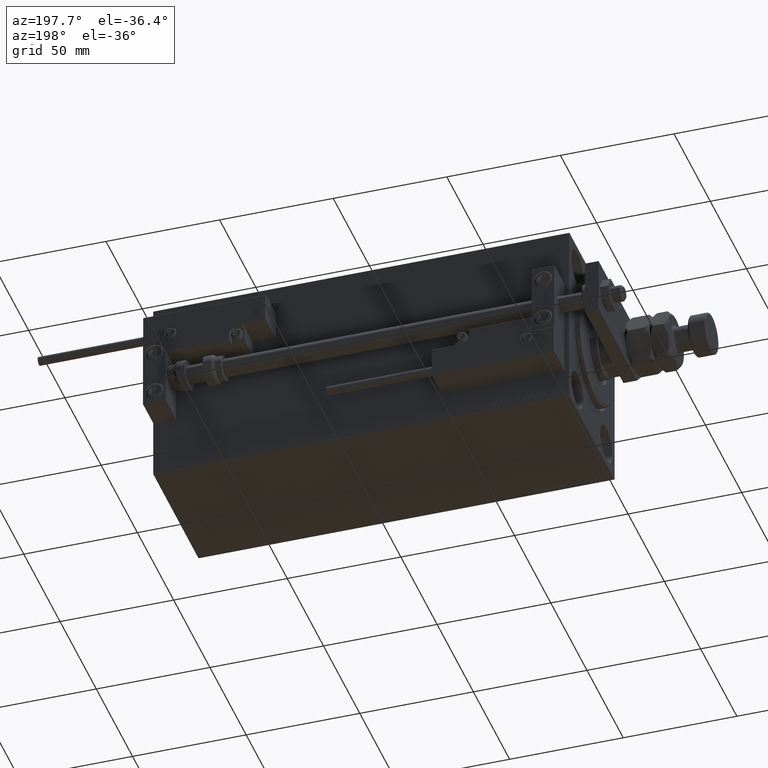
[diagram: clean part render]
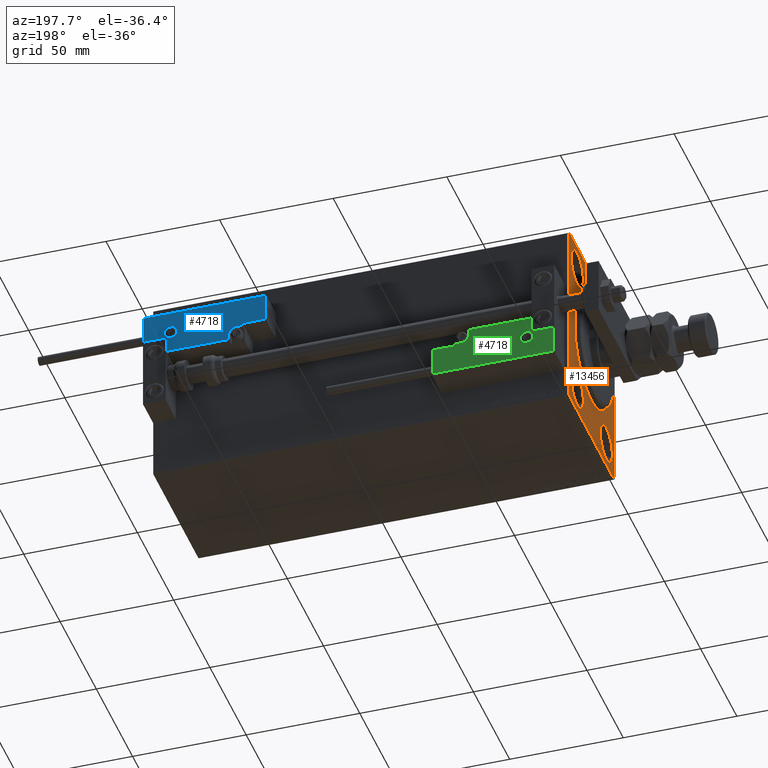
[diagram: same view with three faces highlighted in distinct colors, each labeled with its STEP entity id]
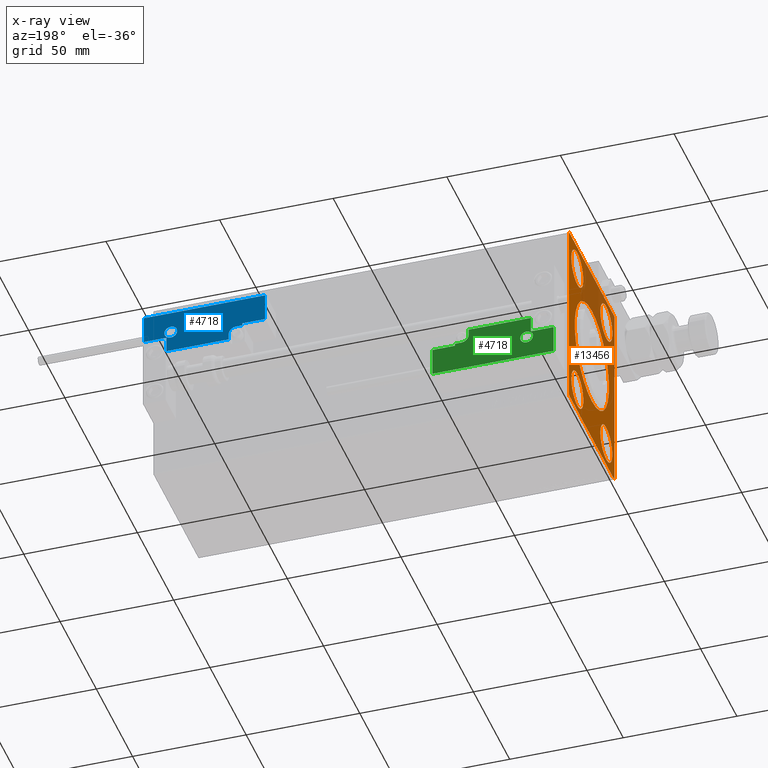
[diagram: x-ray of the same camera — body ghosted, the three highlighted faces saturated]
A machine part, auxiliary view with three faces highlighted in distinct colors.
The next image is the same camera in x-ray (body ghosted, the three faces saturated) — at least one of them is partly hidden behind the body in this view.
Their STEP definitions:

[orange] entity #13456 — the highlighted planar face has unit normal (1, 0, 0).
#165 = CIRCLE ( 'NONE', #16045, 8.250000000000000000 ) ;
#669 = AXIS2_PLACEMENT_3D ( 'NONE', #24267, #40219, #44910 ) ;
#701 = EDGE_CURVE ( 'NONE', #10112, #37192, #14300, .T. ) ;
#724 = ORIENTED_EDGE ( 'NONE', *, *, #47835, .F. ) ;
#1102 = CARTESIAN_POINT ( 'NONE',  ( 0.000000000000000000, 0.000000000000000000, 0.000000000000000000 ) ) ;
#1675 = DIRECTION ( 'NONE',  ( 1.000000000000000000, 0.000000000000000000, 0.000000000000000000 ) ) ;
#1942 = CARTESIAN_POINT ( 'NONE',  ( 0.000000000000000000, 20.00000000000000355, 31.50000000000000000 ) ) ;
#2326 = DIRECTION ( 'NONE',  ( 0.000000000000000000, -1.000000000000000000, -2.202823461557850341E-16 ) ) ;
#2525 = DIRECTION ( 'NONE',  ( -0.000000000000000000, 0.7071067811865474617, -0.7071067811865474617 ) ) ;
#2797 = VERTEX_POINT ( 'NONE', #26390 ) ;
#3162 = VERTEX_POINT ( 'NONE', #23190 ) ;
#3411 = DIRECTION ( 'NONE',  ( 0.000000000000000000, 0.000000000000000000, 1.000000000000000000 ) ) ;
#3761 = VERTEX_POINT ( 'NONE', #44576 ) ;
#4100 = ORIENTED_EDGE ( 'NONE', *, *, #21031, .T. ) ;
#4513 = CIRCLE ( 'NONE', #17868, 8.249999999999992895 ) ;
#4786 = ORIENTED_EDGE ( 'NONE', *, *, #25612, .F. ) ;
#5055 = ORIENTED_EDGE ( 'NONE', *, *, #36386, .F. ) ;
#5092 = DIRECTION ( 'NONE',  ( 0.000000000000000000, 0.000000000000000000, -1.000000000000000000 ) ) ;
#5330 = AXIS2_PLACEMENT_3D ( 'NONE', #16626, #8525, #23972 ) ;
#5370 = CARTESIAN_POINT ( 'NONE',  ( 0.000000000000000000, -19.99999999999999645, 39.74999999999999289 ) ) ;
#6428 = VERTEX_POINT ( 'NONE', #48444 ) ;
#6533 = CARTESIAN_POINT ( 'NONE',  ( 0.000000000000000000, -30.99999999999997158, 42.49999999999999289 ) ) ;
#6626 = ORIENTED_EDGE ( 'NONE', *, *, #47540, .F. ) ;
#6694 = VERTEX_POINT ( 'NONE', #6533 ) ;
#6743 = AXIS2_PLACEMENT_3D ( 'NONE', #41291, #8360, #16714 ) ;
#7336 = CARTESIAN_POINT ( 'NONE',  ( 0.000000000000000000, 31.50000000000001421, -42.00000000000000711 ) ) ;
#8045 = EDGE_CURVE ( 'NONE', #40168, #19398, #12369, .T. ) ;
#8253 = CIRCLE ( 'NONE', #20793, 8.250000000000000000 ) ;
#8360 = DIRECTION ( 'NONE',  ( -1.000000000000000000, 0.000000000000000000, 0.000000000000000000 ) ) ;
#8525 = DIRECTION ( 'NONE',  ( 1.000000000000000000, 0.000000000000000000, 0.000000000000000000 ) ) ;
#8776 = CARTESIAN_POINT ( 'NONE',  ( 0.000000000000000000, 31.50000000000001421, -42.50000000000000711 ) ) ;
#8847 = CARTESIAN_POINT ( 'NONE',  ( 0.000000000000000000, 31.00000000000001421, -42.50000000000000711 ) ) ;
#9172 = CIRCLE ( 'NONE', #38415, 8.250000000000000000 ) ;
#9363 = DIRECTION ( 'NONE',  ( 0.000000000000000000, 0.000000000000000000, 1.000000000000000000 ) ) ;
#10047 = ORIENTED_EDGE ( 'NONE', *, *, #36757, .F. ) ;
#10112 = VERTEX_POINT ( 'NONE', #28774 ) ;
#10620 = EDGE_CURVE ( 'NONE', #40083, #2797, #48795, .T. ) ;
#10984 = DIRECTION ( 'NONE',  ( -1.000000000000000000, 0.000000000000000000, 0.000000000000000000 ) ) ;
#12013 = VECTOR ( 'NONE', #32095, 1000.000000000000000 ) ;
#12369 = CIRCLE ( 'NONE', #669, 8.249999999999992895 ) ;
#12498 = EDGE_LOOP ( 'NONE', ( #10047, #6626 ) ) ;
#12642 = VECTOR ( 'NONE', #23297, 1000.000000000000114 ) ;
#12799 = AXIS2_PLACEMENT_3D ( 'NONE', #1102, #24667, #20237 ) ;
#12841 = CARTESIAN_POINT ( 'NONE',  ( 0.000000000000000000, 31.00000000000002842, 42.50000000000000711 ) ) ;
#13102 = DIRECTION ( 'NONE',  ( -0.000000000000000000, 0.7071067811865474617, 0.7071067811865474617 ) ) ;
#13165 = ORIENTED_EDGE ( 'NONE', *, *, #14437, .F. ) ;
#13360 = CARTESIAN_POINT ( 'NONE',  ( 0.000000000000000000, -31.50000000000000000, 41.99999999999996447 ) ) ;
#13456 = ADVANCED_FACE ( 'NONE', ( #40125, #44298, #40882, #48473, #33054, #16050 ), #48215, .F. ) ;
#13853 = DIRECTION ( 'NONE',  ( 0.000000000000000000, 0.000000000000000000, 1.000000000000000000 ) ) ;
#14300 = LINE ( 'NONE', #12841, #47318 ) ;
#14331 = AXIS2_PLACEMENT_3D ( 'NONE', #23304, #39266, #3411 ) ;
#14431 = EDGE_CURVE ( 'NONE', #2797, #40083, #27901, .T. ) ;
#14437 = EDGE_CURVE ( 'NONE', #15927, #37192, #24236, .T. ) ;
#14622 = EDGE_CURVE ( 'NONE', #3761, #21101, #4513, .T. ) ;
#14636 = CARTESIAN_POINT ( 'NONE',  ( 0.000000000000000000, 20.00000000000000355, 39.74999999999999289 ) ) ;
#14672 = DIRECTION ( 'NONE',  ( 0.000000000000000000, 1.000000000000000000, 0.000000000000000000 ) ) ;
#15317 = DIRECTION ( 'NONE',  ( -0.000000000000000000, -0.7071067811865474617, 0.7071067811865474617 ) ) ;
#15804 = CARTESIAN_POINT ( 'NONE',  ( 0.000000000000000000, -31.50000000000000000, 42.49999999999999289 ) ) ;
#15927 = VERTEX_POINT ( 'NONE', #48932 ) ;
#15943 = CIRCLE ( 'NONE', #6743, 8.249999999999992895 ) ;
#16045 = AXIS2_PLACEMENT_3D ( 'NONE', #20868, #36321, #17183 ) ;
#16050 = FACE_OUTER_BOUND ( 'NONE', #25828, .T. ) ;
#16626 = CARTESIAN_POINT ( 'NONE',  ( 0.000000000000000000, 0.000000000000000000, 0.000000000000000000 ) ) ;
#16714 = DIRECTION ( 'NONE',  ( 0.000000000000000000, 0.000000000000000000, 1.000000000000000000 ) ) ;
#16973 = ORIENTED_EDGE ( 'NONE', *, *, #701, .T. ) ;
#17183 = DIRECTION ( 'NONE',  ( 0.000000000000000000, 0.000000000000000000, 1.000000000000000000 ) ) ;
#17202 = CARTESIAN_POINT ( 'NONE',  ( 0.000000000000000000, -20.00000000000000355, -31.49999999999999289 ) ) ;
#17537 = VERTEX_POINT ( 'NONE', #33106 ) ;
#17868 = AXIS2_PLACEMENT_3D ( 'NONE', #1942, #17904, #29951 ) ;
#17904 = DIRECTION ( 'NONE',  ( -1.000000000000000000, 0.000000000000000000, 0.000000000000000000 ) ) ;
#18701 = AXIS2_PLACEMENT_3D ( 'NONE', #37536, #1675, #5092 ) ;
#18877 = ORIENTED_EDGE ( 'NONE', *, *, #26370, .F. ) ;
#19393 = DIRECTION ( 'NONE',  ( 0.000000000000000000, 0.000000000000000000, 1.000000000000000000 ) ) ;
#19398 = VERTEX_POINT ( 'NONE', #5370 ) ;
#19822 = VECTOR ( 'NONE', #31785, 1000.000000000000000 ) ;
#20237 = DIRECTION ( 'NONE',  ( 0.000000000000000000, 0.000000000000000000, -1.000000000000000000 ) ) ;
#20793 = AXIS2_PLACEMENT_3D ( 'NONE', #17202, #49378, #9363 ) ;
#20868 = CARTESIAN_POINT ( 'NONE',  ( 0.000000000000000000, 19.99999999999999645, -31.49999999999999289 ) ) ;
#20992 = CARTESIAN_POINT ( 'NONE',  ( 0.000000000000000000, 31.50000000000000000, 42.00000000000003553 ) ) ;
#21031 = EDGE_CURVE ( 'NONE', #6428, #6694, #36936, .T. ) ;
#21101 = VERTEX_POINT ( 'NONE', #14636 ) ;
#21708 = CARTESIAN_POINT ( 'NONE',  ( 0.000000000000000000, 31.50000000000000000, 42.50000000000000711 ) ) ;
#21714 = CIRCLE ( 'NONE', #28422, 8.250000000000000000 ) ;
#22266 = CARTESIAN_POINT ( 'NONE',  ( 0.000000000000000000, -31.50000000000000000, -42.50000000000000711 ) ) ;
#23190 = CARTESIAN_POINT ( 'NONE',  ( 0.000000000000000000, -31.00000000000000000, -42.50000000000000711 ) ) ;
#23297 = DIRECTION ( 'NONE',  ( 0.000000000000000000, -0.7071067811865474617, -0.7071067811865474617 ) ) ;
#23304 = CARTESIAN_POINT ( 'NONE',  ( 0.000000000000000000, 20.00000000000000355, 31.50000000000000000 ) ) ;
#23457 = CARTESIAN_POINT ( 'NONE',  ( 0.000000000000000000, -19.99999999999999645, 23.25000000000000355 ) ) ;
#23972 = DIRECTION ( 'NONE',  ( 0.000000000000000000, 0.000000000000000000, -1.000000000000000000 ) ) ;
#24236 = LINE ( 'NONE', #8776, #12013 ) ;
#24267 = CARTESIAN_POINT ( 'NONE',  ( 0.000000000000000000, -19.99999999999999645, 31.50000000000000000 ) ) ;
#24414 = CIRCLE ( 'NONE', #14331, 8.249999999999992895 ) ;
#24667 = DIRECTION ( 'NONE',  ( 1.000000000000000000, 0.000000000000000000, 0.000000000000000000 ) ) ;
#25612 = EDGE_CURVE ( 'NONE', #3162, #46688, #25949, .T. ) ;
#25828 = EDGE_LOOP ( 'NONE', ( #18877, #4100, #38332, #16973, #13165, #34164, #4786, #45542 ) ) ;
#25846 = VERTEX_POINT ( 'NONE', #40561 ) ;
#25949 = LINE ( 'NONE', #22266, #50717 ) ;
#26370 = EDGE_CURVE ( 'NONE', #6428, #25846, #47447, .T. ) ;
#26390 = CARTESIAN_POINT ( 'NONE',  ( 0.000000000000000000, 2.877919977996275587E-15, -23.49999999999996092 ) ) ;
#26546 = ORIENTED_EDGE ( 'NONE', *, *, #10620, .T. ) ;
#27901 = CIRCLE ( 'NONE', #5330, 23.49999999999996092 ) ;
#28324 = EDGE_LOOP ( 'NONE', ( #26546, #51653 ) ) ;
#28422 = AXIS2_PLACEMENT_3D ( 'NONE', #45536, #10984, #13853 ) ;
#28774 = CARTESIAN_POINT ( 'NONE',  ( 0.000000000000000000, 31.00000000000002842, 42.50000000000000711 ) ) ;
#29481 = EDGE_CURVE ( 'NONE', #10112, #6694, #33267, .T. ) ;
#29762 = EDGE_CURVE ( 'NONE', #35895, #17537, #8253, .T. ) ;
#29951 = DIRECTION ( 'NONE',  ( 0.000000000000000000, 0.000000000000000000, 1.000000000000000000 ) ) ;
#31125 = EDGE_LOOP ( 'NONE', ( #5055, #50563 ) ) ;
#31183 = DIRECTION ( 'NONE',  ( -1.000000000000000000, 0.000000000000000000, 0.000000000000000000 ) ) ;
#31679 = VECTOR ( 'NONE', #2326, 1000.000000000000000 ) ;
#31785 = DIRECTION ( 'NONE',  ( 0.000000000000000000, 0.000000000000000000, -1.000000000000000000 ) ) ;
#31826 = CARTESIAN_POINT ( 'NONE',  ( 0.000000000000000000, 19.99999999999999645, -23.24999999999999289 ) ) ;
#32095 = DIRECTION ( 'NONE',  ( 0.000000000000000000, -1.632680918566406300E-16, 1.000000000000000000 ) ) ;
#32400 = VERTEX_POINT ( 'NONE', #31826 ) ;
#33054 = FACE_BOUND ( 'NONE', #41799, .T. ) ;
#33106 = CARTESIAN_POINT ( 'NONE',  ( 0.000000000000000000, -20.00000000000000355, -23.24999999999999289 ) ) ;
#33267 = LINE ( 'NONE', #21708, #31679 ) ;
#33812 = CARTESIAN_POINT ( 'NONE',  ( 0.000000000000000000, -20.00000000000000355, -39.74999999999999289 ) ) ;
#34164 = ORIENTED_EDGE ( 'NONE', *, *, #35404, .T. ) ;
#35404 = EDGE_CURVE ( 'NONE', #15927, #46688, #43176, .T. ) ;
#35680 = VECTOR ( 'NONE', #13102, 1000.000000000000114 ) ;
#35823 = CARTESIAN_POINT ( 'NONE',  ( 0.000000000000000000, 19.99999999999999645, -39.74999999999999289 ) ) ;
#35895 = VERTEX_POINT ( 'NONE', #33812 ) ;
#36321 = DIRECTION ( 'NONE',  ( -1.000000000000000000, 0.000000000000000000, 0.000000000000000000 ) ) ;
#36386 = EDGE_CURVE ( 'NONE', #21101, #3761, #24414, .T. ) ;
#36537 = VERTEX_POINT ( 'NONE', #35823 ) ;
#36757 = EDGE_CURVE ( 'NONE', #32400, #36537, #165, .T. ) ;
#36936 = LINE ( 'NONE', #13360, #35680 ) ;
#37179 = ORIENTED_EDGE ( 'NONE', *, *, #8045, .F. ) ;
#37192 = VERTEX_POINT ( 'NONE', #20992 ) ;
#37536 = CARTESIAN_POINT ( 'NONE',  ( 0.000000000000000000, 0.000000000000000000, 0.000000000000000000 ) ) ;
#38332 = ORIENTED_EDGE ( 'NONE', *, *, #29481, .F. ) ;
#38415 = AXIS2_PLACEMENT_3D ( 'NONE', #47633, #31183, #19393 ) ;
#39266 = DIRECTION ( 'NONE',  ( -1.000000000000000000, 0.000000000000000000, 0.000000000000000000 ) ) ;
#40083 = VERTEX_POINT ( 'NONE', #48545 ) ;
#40125 = FACE_BOUND ( 'NONE', #28324, .T. ) ;
#40168 = VERTEX_POINT ( 'NONE', #23457 ) ;
#40219 = DIRECTION ( 'NONE',  ( -1.000000000000000000, 0.000000000000000000, 0.000000000000000000 ) ) ;
#40561 = CARTESIAN_POINT ( 'NONE',  ( 0.000000000000000000, -31.50000000000000000, -42.00000000000000711 ) ) ;
#40882 = FACE_BOUND ( 'NONE', #41773, .T. ) ;
#41291 = CARTESIAN_POINT ( 'NONE',  ( 0.000000000000000000, -19.99999999999999645, 31.50000000000000000 ) ) ;
#41730 = VECTOR ( 'NONE', #15317, 1000.000000000000114 ) ;
#41773 = EDGE_LOOP ( 'NONE', ( #724, #37179 ) ) ;
#41799 = EDGE_LOOP ( 'NONE', ( #49804, #48382 ) ) ;
#43176 = LINE ( 'NONE', #7336, #12642 ) ;
#44298 = FACE_BOUND ( 'NONE', #12498, .T. ) ;
#44576 = CARTESIAN_POINT ( 'NONE',  ( 0.000000000000000000, 20.00000000000000355, 23.25000000000000355 ) ) ;
#44910 = DIRECTION ( 'NONE',  ( 0.000000000000000000, 0.000000000000000000, 1.000000000000000000 ) ) ;
#45536 = CARTESIAN_POINT ( 'NONE',  ( 0.000000000000000000, 19.99999999999999645, -31.49999999999999289 ) ) ;
#45542 = ORIENTED_EDGE ( 'NONE', *, *, #48958, .T. ) ;
#46688 = VERTEX_POINT ( 'NONE', #8847 ) ;
#47318 = VECTOR ( 'NONE', #2525, 1000.000000000000114 ) ;
#47447 = LINE ( 'NONE', #15804, #19822 ) ;
#47540 = EDGE_CURVE ( 'NONE', #36537, #32400, #21714, .T. ) ;
#47633 = CARTESIAN_POINT ( 'NONE',  ( 0.000000000000000000, -20.00000000000000355, -31.49999999999999289 ) ) ;
#47835 = EDGE_CURVE ( 'NONE', #19398, #40168, #15943, .T. ) ;
#48215 = PLANE ( 'NONE',  #12799 ) ;
#48382 = ORIENTED_EDGE ( 'NONE', *, *, #29762, .F. ) ;
#48444 = CARTESIAN_POINT ( 'NONE',  ( 0.000000000000000000, -31.50000000000000000, 41.99999999999996447 ) ) ;
#48473 = FACE_BOUND ( 'NONE', #31125, .T. ) ;
#48545 = CARTESIAN_POINT ( 'NONE',  ( 0.000000000000000000, 0.000000000000000000, 23.49999999999996092 ) ) ;
#48795 = CIRCLE ( 'NONE', #18701, 23.49999999999996092 ) ;
#48932 = CARTESIAN_POINT ( 'NONE',  ( 0.000000000000000000, 31.50000000000001421, -42.00000000000000711 ) ) ;
#48958 = EDGE_CURVE ( 'NONE', #3162, #25846, #51417, .T. ) ;
#49378 = DIRECTION ( 'NONE',  ( -1.000000000000000000, 0.000000000000000000, 0.000000000000000000 ) ) ;
#49804 = ORIENTED_EDGE ( 'NONE', *, *, #50460, .F. ) ;
#50460 = EDGE_CURVE ( 'NONE', #17537, #35895, #9172, .T. ) ;
#50563 = ORIENTED_EDGE ( 'NONE', *, *, #14622, .F. ) ;
#50717 = VECTOR ( 'NONE', #14672, 1000.000000000000000 ) ;
#51157 = CARTESIAN_POINT ( 'NONE',  ( 0.000000000000000000, -31.00000000000000000, -42.50000000000000711 ) ) ;
#51417 = LINE ( 'NONE', #51157, #41730 ) ;
#51653 = ORIENTED_EDGE ( 'NONE', *, *, #14431, .T. ) ;

[blue] entity #4718 — the highlighted planar face has unit normal (0, 1, -0).
#207 = CARTESIAN_POINT ( 'NONE',  ( -26.69999999999994600, 7.300000000000005151, 14.00000000000000000 ) ) ;
#536 = VERTEX_POINT ( 'NONE', #18622 ) ;
#2732 = DIRECTION ( 'NONE',  ( 1.000000000000000000, -0.000000000000000000, 0.000000000000000000 ) ) ;
#2864 = VERTEX_POINT ( 'NONE', #3094 ) ;
#3094 = CARTESIAN_POINT ( 'NONE',  ( -11.99999999999994849, 9.800000000000004263, 14.00000000000000000 ) ) ;
#3975 = CIRCLE ( 'NONE', #22379, 2.800000000000000266 ) ;
#4718 = ADVANCED_FACE ( 'NONE', ( #13106, #29338 ), #48695, .T. ) ;
#4881 = VECTOR ( 'NONE', #39345, 1000.000000000000000 ) ;
#5752 = VECTOR ( 'NONE', #23729, 1000.000000000000000 ) ;
#5767 = DIRECTION ( 'NONE',  ( 1.000000000000000000, 0.000000000000000000, 0.000000000000000000 ) ) ;
#5903 = LINE ( 'NONE', #30241, #19065 ) ;
#5929 = DIRECTION ( 'NONE',  ( 0.000000000000000000, -0.000000000000000000, -1.000000000000000000 ) ) ;
#6405 = CARTESIAN_POINT ( 'NONE',  ( 11.00000000000000000, 0.3000000000000032085, 14.00000000000000000 ) ) ;
#6834 = VERTEX_POINT ( 'NONE', #17215 ) ;
#6891 = EDGE_CURVE ( 'NONE', #36644, #37305, #13291, .T. ) ;
#7124 = CARTESIAN_POINT ( 'NONE',  ( 26.70000000000006324, 7.300000000000007816, 14.00000000000000000 ) ) ;
#8086 = ORIENTED_EDGE ( 'NONE', *, *, #43144, .T. ) ;
#9120 = DIRECTION ( 'NONE',  ( 1.000000000000000000, -1.734723475976815230E-16, 0.000000000000000000 ) ) ;
#9874 = VERTEX_POINT ( 'NONE', #14138 ) ;
#10962 = ORIENTED_EDGE ( 'NONE', *, *, #26625, .T. ) ;
#11373 = VECTOR ( 'NONE', #23461, 1000.000000000000000 ) ;
#12888 = EDGE_LOOP ( 'NONE', ( #8086, #29815, #26126, #13828, #21159, #50703, #31902, #13519, #16238, #15145, #14265 ) ) ;
#12909 = CIRCLE ( 'NONE', #39627, 3.299999999999997158 ) ;
#13106 = FACE_BOUND ( 'NONE', #16447, .T. ) ;
#13291 = LINE ( 'NONE', #29269, #16518 ) ;
#13519 = ORIENTED_EDGE ( 'NONE', *, *, #23198, .T. ) ;
#13828 = ORIENTED_EDGE ( 'NONE', *, *, #15527, .T. ) ;
#14138 = CARTESIAN_POINT ( 'NONE',  ( -16.69999999999999218, 0.3000000000000032085, 14.00000000000000000 ) ) ;
#14265 = ORIENTED_EDGE ( 'NONE', *, *, #6891, .T. ) ;
#15145 = ORIENTED_EDGE ( 'NONE', *, *, #24855, .T. ) ;
#15523 = CARTESIAN_POINT ( 'NONE',  ( -16.69999999999999218, 3.252606517456513302E-15, 14.00000000000000000 ) ) ;
#15527 = EDGE_CURVE ( 'NONE', #32618, #536, #12909, .T. ) ;
#16238 = ORIENTED_EDGE ( 'NONE', *, *, #42462, .T. ) ;
#16447 = EDGE_LOOP ( 'NONE', ( #10962, #23146 ) ) ;
#16518 = VECTOR ( 'NONE', #9120, 1000.000000000000000 ) ;
#16591 = CARTESIAN_POINT ( 'NONE',  ( -26.99999999999993605, 19.70000000000002061, 14.00000000000000000 ) ) ;
#17158 = AXIS2_PLACEMENT_3D ( 'NONE', #38425, #42078, #49664 ) ;
#17215 = CARTESIAN_POINT ( 'NONE',  ( -26.69999999999993534, 19.70000000000002061, 14.00000000000000000 ) ) ;
#18276 = EDGE_CURVE ( 'NONE', #37917, #2864, #39775, .T. ) ;
#18448 = LINE ( 'NONE', #31286, #33208 ) ;
#18622 = CARTESIAN_POINT ( 'NONE',  ( 13.99999999999999822, 6.300000000000001599, 14.00000000000000000 ) ) ;
#18903 = AXIS2_PLACEMENT_3D ( 'NONE', #25156, #41612, #5767 ) ;
#19065 = VECTOR ( 'NONE', #34187, 1000.000000000000000 ) ;
#19203 = EDGE_CURVE ( 'NONE', #40181, #33786, #35773, .T. ) ;
#19459 = LINE ( 'NONE', #15523, #4881 ) ;
#19949 = LINE ( 'NONE', #43747, #31569 ) ;
#21159 = ORIENTED_EDGE ( 'NONE', *, *, #25632, .T. ) ;
#21414 = EDGE_CURVE ( 'NONE', #38947, #32618, #18448, .T. ) ;
#21418 = EDGE_CURVE ( 'NONE', #9874, #38947, #38075, .T. ) ;
#21771 = DIRECTION ( 'NONE',  ( 1.000000000000000000, 0.000000000000000000, 0.000000000000000000 ) ) ;
#22379 = AXIS2_PLACEMENT_3D ( 'NONE', #41657, #50008, #21771 ) ;
#23146 = ORIENTED_EDGE ( 'NONE', *, *, #18276, .T. ) ;
#23198 = EDGE_CURVE ( 'NONE', #51631, #40488, #19949, .T. ) ;
#23461 = DIRECTION ( 'NONE',  ( 9.912705577010318647E-16, 1.000000000000000000, 0.000000000000000000 ) ) ;
#23630 = CARTESIAN_POINT ( 'NONE',  ( 10.69999999999999929, 3.000000000000003109, 14.00000000000000000 ) ) ;
#23663 = CARTESIAN_POINT ( 'NONE',  ( 13.99999999999999822, 3.000000000000002665, 14.00000000000000000 ) ) ;
#23729 = DIRECTION ( 'NONE',  ( 1.000000000000000000, -1.734723475976796001E-16, 0.000000000000000000 ) ) ;
#23977 = CARTESIAN_POINT ( 'NONE',  ( 16.69999999999999929, 6.300000000000003375, 14.00000000000000000 ) ) ;
#24249 = CARTESIAN_POINT ( 'NONE',  ( 27.00000000000006395, 7.300000000000007816, 14.00000000000000000 ) ) ;
#24855 = EDGE_CURVE ( 'NONE', #6834, #36644, #5903, .T. ) ;
#25156 = CARTESIAN_POINT ( 'NONE',  ( 0.000000000000000000, 0.000000000000000000, 14.00000000000000000 ) ) ;
#25632 = EDGE_CURVE ( 'NONE', #536, #40181, #50781, .T. ) ;
#26126 = ORIENTED_EDGE ( 'NONE', *, *, #21414, .T. ) ;
#26577 = VECTOR ( 'NONE', #32576, 1000.000000000000000 ) ;
#26625 = EDGE_CURVE ( 'NONE', #2864, #37917, #3975, .T. ) ;
#26984 = DIRECTION ( 'NONE',  ( 1.000000000000000000, 5.782411586589357639E-16, -0.000000000000000000 ) ) ;
#27605 = LINE ( 'NONE', #16591, #26577 ) ;
#27899 = CARTESIAN_POINT ( 'NONE',  ( 10.69999999999999929, 0.3000000000000032085, 14.00000000000000000 ) ) ;
#29143 = LINE ( 'NONE', #24249, #5752 ) ;
#29269 = CARTESIAN_POINT ( 'NONE',  ( -16.99999999999999289, 7.300000000000003375, 14.00000000000000000 ) ) ;
#29338 = FACE_OUTER_BOUND ( 'NONE', #12888, .T. ) ;
#29815 = ORIENTED_EDGE ( 'NONE', *, *, #21418, .T. ) ;
#29945 = EDGE_CURVE ( 'NONE', #33786, #51631, #29143, .T. ) ;
#30241 = CARTESIAN_POINT ( 'NONE',  ( -26.69999999999994600, 7.000000000000005329, 14.00000000000000000 ) ) ;
#31286 = CARTESIAN_POINT ( 'NONE',  ( 10.69999999999999929, 3.000000000000003109, 14.00000000000000000 ) ) ;
#31569 = VECTOR ( 'NONE', #31994, 1000.000000000000000 ) ;
#31902 = ORIENTED_EDGE ( 'NONE', *, *, #29945, .T. ) ;
#31994 = DIRECTION ( 'NONE',  ( 0.000000000000000000, 1.000000000000000000, -0.000000000000000000 ) ) ;
#32576 = DIRECTION ( 'NONE',  ( -1.000000000000000000, 6.424901762877063495E-17, -0.000000000000000000 ) ) ;
#32618 = VERTEX_POINT ( 'NONE', #23630 ) ;
#33208 = VECTOR ( 'NONE', #50887, 1000.000000000000000 ) ;
#33786 = VERTEX_POINT ( 'NONE', #35346 ) ;
#34187 = DIRECTION ( 'NONE',  ( -8.006416042969869188E-16, -1.000000000000000000, 0.000000000000000000 ) ) ;
#34412 = CARTESIAN_POINT ( 'NONE',  ( 26.70000000000006324, 19.70000000000001705, 14.00000000000000000 ) ) ;
#35346 = CARTESIAN_POINT ( 'NONE',  ( 16.69999999999999929, 7.300000000000009592, 14.00000000000000000 ) ) ;
#35717 = VECTOR ( 'NONE', #26984, 1000.000000000000000 ) ;
#35773 = LINE ( 'NONE', #40197, #11373 ) ;
#36018 = CARTESIAN_POINT ( 'NONE',  ( -17.59999999999994813, 9.800000000000004263, 14.00000000000000000 ) ) ;
#36644 = VERTEX_POINT ( 'NONE', #207 ) ;
#37305 = VERTEX_POINT ( 'NONE', #39787 ) ;
#37917 = VERTEX_POINT ( 'NONE', #36018 ) ;
#38075 = LINE ( 'NONE', #6405, #42356 ) ;
#38425 = CARTESIAN_POINT ( 'NONE',  ( -14.79999999999994920, 9.800000000000004263, 14.00000000000000000 ) ) ;
#38947 = VERTEX_POINT ( 'NONE', #27899 ) ;
#39345 = DIRECTION ( 'NONE',  ( 0.000000000000000000, -1.000000000000000000, 0.000000000000000000 ) ) ;
#39627 = AXIS2_PLACEMENT_3D ( 'NONE', #23663, #5929, #43546 ) ;
#39775 = CIRCLE ( 'NONE', #17158, 2.800000000000000266 ) ;
#39787 = CARTESIAN_POINT ( 'NONE',  ( -16.69999999999999218, 7.300000000000003375, 14.00000000000000000 ) ) ;
#40181 = VERTEX_POINT ( 'NONE', #23977 ) ;
#40197 = CARTESIAN_POINT ( 'NONE',  ( 16.69999999999999929, 7.000000000000009770, 14.00000000000000000 ) ) ;
#40488 = VERTEX_POINT ( 'NONE', #34412 ) ;
#41612 = DIRECTION ( 'NONE',  ( -0.000000000000000000, 0.000000000000000000, 1.000000000000000000 ) ) ;
#41657 = CARTESIAN_POINT ( 'NONE',  ( -14.79999999999994920, 9.800000000000004263, 14.00000000000000000 ) ) ;
#42078 = DIRECTION ( 'NONE',  ( 0.000000000000000000, -0.000000000000000000, -1.000000000000000000 ) ) ;
#42356 = VECTOR ( 'NONE', #2732, 1000.000000000000000 ) ;
#42462 = EDGE_CURVE ( 'NONE', #40488, #6834, #27605, .T. ) ;
#43144 = EDGE_CURVE ( 'NONE', #37305, #9874, #19459, .T. ) ;
#43196 = CARTESIAN_POINT ( 'NONE',  ( 17.00000000000000000, 6.300000000000003375, 14.00000000000000000 ) ) ;
#43546 = DIRECTION ( 'NONE',  ( 1.000000000000000000, 0.000000000000000000, 0.000000000000000000 ) ) ;
#43747 = CARTESIAN_POINT ( 'NONE',  ( 26.70000000000006324, 20.00000000000001776, 14.00000000000000000 ) ) ;
#48695 = PLANE ( 'NONE',  #18903 ) ;
#49664 = DIRECTION ( 'NONE',  ( 1.000000000000000000, 0.000000000000000000, 0.000000000000000000 ) ) ;
#50008 = DIRECTION ( 'NONE',  ( 0.000000000000000000, -0.000000000000000000, -1.000000000000000000 ) ) ;
#50703 = ORIENTED_EDGE ( 'NONE', *, *, #19203, .T. ) ;
#50781 = LINE ( 'NONE', #43196, #35717 ) ;
#50887 = DIRECTION ( 'NONE',  ( -0.000000000000000000, 1.000000000000000000, -0.000000000000000000 ) ) ;
#51631 = VERTEX_POINT ( 'NONE', #7124 ) ;

[green] entity #4718 — the highlighted planar face has unit normal (-0, 1, -0).
#207 = CARTESIAN_POINT ( 'NONE',  ( -26.69999999999994600, 7.300000000000005151, 14.00000000000000000 ) ) ;
#536 = VERTEX_POINT ( 'NONE', #18622 ) ;
#2732 = DIRECTION ( 'NONE',  ( 1.000000000000000000, -0.000000000000000000, 0.000000000000000000 ) ) ;
#2864 = VERTEX_POINT ( 'NONE', #3094 ) ;
#3094 = CARTESIAN_POINT ( 'NONE',  ( -11.99999999999994849, 9.800000000000004263, 14.00000000000000000 ) ) ;
#3975 = CIRCLE ( 'NONE', #22379, 2.800000000000000266 ) ;
#4718 = ADVANCED_FACE ( 'NONE', ( #13106, #29338 ), #48695, .T. ) ;
#4881 = VECTOR ( 'NONE', #39345, 1000.000000000000000 ) ;
#5752 = VECTOR ( 'NONE', #23729, 1000.000000000000000 ) ;
#5767 = DIRECTION ( 'NONE',  ( 1.000000000000000000, 0.000000000000000000, 0.000000000000000000 ) ) ;
#5903 = LINE ( 'NONE', #30241, #19065 ) ;
#5929 = DIRECTION ( 'NONE',  ( 0.000000000000000000, -0.000000000000000000, -1.000000000000000000 ) ) ;
#6405 = CARTESIAN_POINT ( 'NONE',  ( 11.00000000000000000, 0.3000000000000032085, 14.00000000000000000 ) ) ;
#6834 = VERTEX_POINT ( 'NONE', #17215 ) ;
#6891 = EDGE_CURVE ( 'NONE', #36644, #37305, #13291, .T. ) ;
#7124 = CARTESIAN_POINT ( 'NONE',  ( 26.70000000000006324, 7.300000000000007816, 14.00000000000000000 ) ) ;
#8086 = ORIENTED_EDGE ( 'NONE', *, *, #43144, .T. ) ;
#9120 = DIRECTION ( 'NONE',  ( 1.000000000000000000, -1.734723475976815230E-16, 0.000000000000000000 ) ) ;
#9874 = VERTEX_POINT ( 'NONE', #14138 ) ;
#10962 = ORIENTED_EDGE ( 'NONE', *, *, #26625, .T. ) ;
#11373 = VECTOR ( 'NONE', #23461, 1000.000000000000000 ) ;
#12888 = EDGE_LOOP ( 'NONE', ( #8086, #29815, #26126, #13828, #21159, #50703, #31902, #13519, #16238, #15145, #14265 ) ) ;
#12909 = CIRCLE ( 'NONE', #39627, 3.299999999999997158 ) ;
#13106 = FACE_BOUND ( 'NONE', #16447, .T. ) ;
#13291 = LINE ( 'NONE', #29269, #16518 ) ;
#13519 = ORIENTED_EDGE ( 'NONE', *, *, #23198, .T. ) ;
#13828 = ORIENTED_EDGE ( 'NONE', *, *, #15527, .T. ) ;
#14138 = CARTESIAN_POINT ( 'NONE',  ( -16.69999999999999218, 0.3000000000000032085, 14.00000000000000000 ) ) ;
#14265 = ORIENTED_EDGE ( 'NONE', *, *, #6891, .T. ) ;
#15145 = ORIENTED_EDGE ( 'NONE', *, *, #24855, .T. ) ;
#15523 = CARTESIAN_POINT ( 'NONE',  ( -16.69999999999999218, 3.252606517456513302E-15, 14.00000000000000000 ) ) ;
#15527 = EDGE_CURVE ( 'NONE', #32618, #536, #12909, .T. ) ;
#16238 = ORIENTED_EDGE ( 'NONE', *, *, #42462, .T. ) ;
#16447 = EDGE_LOOP ( 'NONE', ( #10962, #23146 ) ) ;
#16518 = VECTOR ( 'NONE', #9120, 1000.000000000000000 ) ;
#16591 = CARTESIAN_POINT ( 'NONE',  ( -26.99999999999993605, 19.70000000000002061, 14.00000000000000000 ) ) ;
#17158 = AXIS2_PLACEMENT_3D ( 'NONE', #38425, #42078, #49664 ) ;
#17215 = CARTESIAN_POINT ( 'NONE',  ( -26.69999999999993534, 19.70000000000002061, 14.00000000000000000 ) ) ;
#18276 = EDGE_CURVE ( 'NONE', #37917, #2864, #39775, .T. ) ;
#18448 = LINE ( 'NONE', #31286, #33208 ) ;
#18622 = CARTESIAN_POINT ( 'NONE',  ( 13.99999999999999822, 6.300000000000001599, 14.00000000000000000 ) ) ;
#18903 = AXIS2_PLACEMENT_3D ( 'NONE', #25156, #41612, #5767 ) ;
#19065 = VECTOR ( 'NONE', #34187, 1000.000000000000000 ) ;
#19203 = EDGE_CURVE ( 'NONE', #40181, #33786, #35773, .T. ) ;
#19459 = LINE ( 'NONE', #15523, #4881 ) ;
#19949 = LINE ( 'NONE', #43747, #31569 ) ;
#21159 = ORIENTED_EDGE ( 'NONE', *, *, #25632, .T. ) ;
#21414 = EDGE_CURVE ( 'NONE', #38947, #32618, #18448, .T. ) ;
#21418 = EDGE_CURVE ( 'NONE', #9874, #38947, #38075, .T. ) ;
#21771 = DIRECTION ( 'NONE',  ( 1.000000000000000000, 0.000000000000000000, 0.000000000000000000 ) ) ;
#22379 = AXIS2_PLACEMENT_3D ( 'NONE', #41657, #50008, #21771 ) ;
#23146 = ORIENTED_EDGE ( 'NONE', *, *, #18276, .T. ) ;
#23198 = EDGE_CURVE ( 'NONE', #51631, #40488, #19949, .T. ) ;
#23461 = DIRECTION ( 'NONE',  ( 9.912705577010318647E-16, 1.000000000000000000, 0.000000000000000000 ) ) ;
#23630 = CARTESIAN_POINT ( 'NONE',  ( 10.69999999999999929, 3.000000000000003109, 14.00000000000000000 ) ) ;
#23663 = CARTESIAN_POINT ( 'NONE',  ( 13.99999999999999822, 3.000000000000002665, 14.00000000000000000 ) ) ;
#23729 = DIRECTION ( 'NONE',  ( 1.000000000000000000, -1.734723475976796001E-16, 0.000000000000000000 ) ) ;
#23977 = CARTESIAN_POINT ( 'NONE',  ( 16.69999999999999929, 6.300000000000003375, 14.00000000000000000 ) ) ;
#24249 = CARTESIAN_POINT ( 'NONE',  ( 27.00000000000006395, 7.300000000000007816, 14.00000000000000000 ) ) ;
#24855 = EDGE_CURVE ( 'NONE', #6834, #36644, #5903, .T. ) ;
#25156 = CARTESIAN_POINT ( 'NONE',  ( 0.000000000000000000, 0.000000000000000000, 14.00000000000000000 ) ) ;
#25632 = EDGE_CURVE ( 'NONE', #536, #40181, #50781, .T. ) ;
#26126 = ORIENTED_EDGE ( 'NONE', *, *, #21414, .T. ) ;
#26577 = VECTOR ( 'NONE', #32576, 1000.000000000000000 ) ;
#26625 = EDGE_CURVE ( 'NONE', #2864, #37917, #3975, .T. ) ;
#26984 = DIRECTION ( 'NONE',  ( 1.000000000000000000, 5.782411586589357639E-16, -0.000000000000000000 ) ) ;
#27605 = LINE ( 'NONE', #16591, #26577 ) ;
#27899 = CARTESIAN_POINT ( 'NONE',  ( 10.69999999999999929, 0.3000000000000032085, 14.00000000000000000 ) ) ;
#29143 = LINE ( 'NONE', #24249, #5752 ) ;
#29269 = CARTESIAN_POINT ( 'NONE',  ( -16.99999999999999289, 7.300000000000003375, 14.00000000000000000 ) ) ;
#29338 = FACE_OUTER_BOUND ( 'NONE', #12888, .T. ) ;
#29815 = ORIENTED_EDGE ( 'NONE', *, *, #21418, .T. ) ;
#29945 = EDGE_CURVE ( 'NONE', #33786, #51631, #29143, .T. ) ;
#30241 = CARTESIAN_POINT ( 'NONE',  ( -26.69999999999994600, 7.000000000000005329, 14.00000000000000000 ) ) ;
#31286 = CARTESIAN_POINT ( 'NONE',  ( 10.69999999999999929, 3.000000000000003109, 14.00000000000000000 ) ) ;
#31569 = VECTOR ( 'NONE', #31994, 1000.000000000000000 ) ;
#31902 = ORIENTED_EDGE ( 'NONE', *, *, #29945, .T. ) ;
#31994 = DIRECTION ( 'NONE',  ( 0.000000000000000000, 1.000000000000000000, -0.000000000000000000 ) ) ;
#32576 = DIRECTION ( 'NONE',  ( -1.000000000000000000, 6.424901762877063495E-17, -0.000000000000000000 ) ) ;
#32618 = VERTEX_POINT ( 'NONE', #23630 ) ;
#33208 = VECTOR ( 'NONE', #50887, 1000.000000000000000 ) ;
#33786 = VERTEX_POINT ( 'NONE', #35346 ) ;
#34187 = DIRECTION ( 'NONE',  ( -8.006416042969869188E-16, -1.000000000000000000, 0.000000000000000000 ) ) ;
#34412 = CARTESIAN_POINT ( 'NONE',  ( 26.70000000000006324, 19.70000000000001705, 14.00000000000000000 ) ) ;
#35346 = CARTESIAN_POINT ( 'NONE',  ( 16.69999999999999929, 7.300000000000009592, 14.00000000000000000 ) ) ;
#35717 = VECTOR ( 'NONE', #26984, 1000.000000000000000 ) ;
#35773 = LINE ( 'NONE', #40197, #11373 ) ;
#36018 = CARTESIAN_POINT ( 'NONE',  ( -17.59999999999994813, 9.800000000000004263, 14.00000000000000000 ) ) ;
#36644 = VERTEX_POINT ( 'NONE', #207 ) ;
#37305 = VERTEX_POINT ( 'NONE', #39787 ) ;
#37917 = VERTEX_POINT ( 'NONE', #36018 ) ;
#38075 = LINE ( 'NONE', #6405, #42356 ) ;
#38425 = CARTESIAN_POINT ( 'NONE',  ( -14.79999999999994920, 9.800000000000004263, 14.00000000000000000 ) ) ;
#38947 = VERTEX_POINT ( 'NONE', #27899 ) ;
#39345 = DIRECTION ( 'NONE',  ( 0.000000000000000000, -1.000000000000000000, 0.000000000000000000 ) ) ;
#39627 = AXIS2_PLACEMENT_3D ( 'NONE', #23663, #5929, #43546 ) ;
#39775 = CIRCLE ( 'NONE', #17158, 2.800000000000000266 ) ;
#39787 = CARTESIAN_POINT ( 'NONE',  ( -16.69999999999999218, 7.300000000000003375, 14.00000000000000000 ) ) ;
#40181 = VERTEX_POINT ( 'NONE', #23977 ) ;
#40197 = CARTESIAN_POINT ( 'NONE',  ( 16.69999999999999929, 7.000000000000009770, 14.00000000000000000 ) ) ;
#40488 = VERTEX_POINT ( 'NONE', #34412 ) ;
#41612 = DIRECTION ( 'NONE',  ( -0.000000000000000000, 0.000000000000000000, 1.000000000000000000 ) ) ;
#41657 = CARTESIAN_POINT ( 'NONE',  ( -14.79999999999994920, 9.800000000000004263, 14.00000000000000000 ) ) ;
#42078 = DIRECTION ( 'NONE',  ( 0.000000000000000000, -0.000000000000000000, -1.000000000000000000 ) ) ;
#42356 = VECTOR ( 'NONE', #2732, 1000.000000000000000 ) ;
#42462 = EDGE_CURVE ( 'NONE', #40488, #6834, #27605, .T. ) ;
#43144 = EDGE_CURVE ( 'NONE', #37305, #9874, #19459, .T. ) ;
#43196 = CARTESIAN_POINT ( 'NONE',  ( 17.00000000000000000, 6.300000000000003375, 14.00000000000000000 ) ) ;
#43546 = DIRECTION ( 'NONE',  ( 1.000000000000000000, 0.000000000000000000, 0.000000000000000000 ) ) ;
#43747 = CARTESIAN_POINT ( 'NONE',  ( 26.70000000000006324, 20.00000000000001776, 14.00000000000000000 ) ) ;
#48695 = PLANE ( 'NONE',  #18903 ) ;
#49664 = DIRECTION ( 'NONE',  ( 1.000000000000000000, 0.000000000000000000, 0.000000000000000000 ) ) ;
#50008 = DIRECTION ( 'NONE',  ( 0.000000000000000000, -0.000000000000000000, -1.000000000000000000 ) ) ;
#50703 = ORIENTED_EDGE ( 'NONE', *, *, #19203, .T. ) ;
#50781 = LINE ( 'NONE', #43196, #35717 ) ;
#50887 = DIRECTION ( 'NONE',  ( -0.000000000000000000, 1.000000000000000000, -0.000000000000000000 ) ) ;
#51631 = VERTEX_POINT ( 'NONE', #7124 ) ;